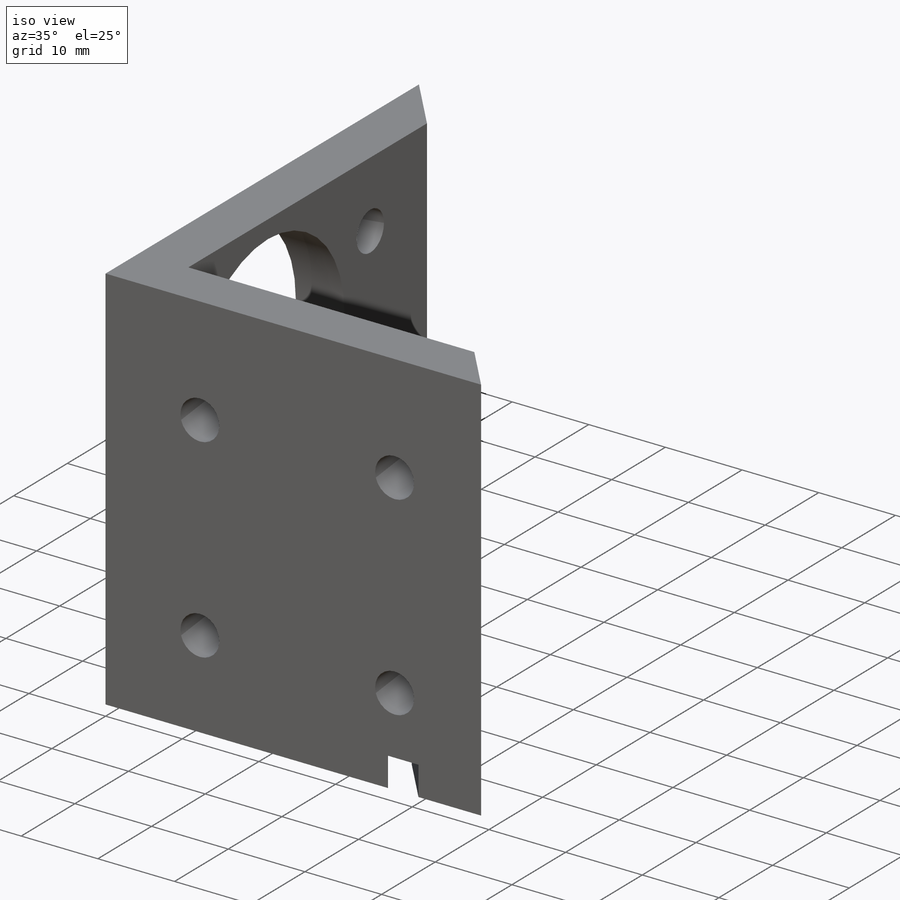
[diagram: iso view]
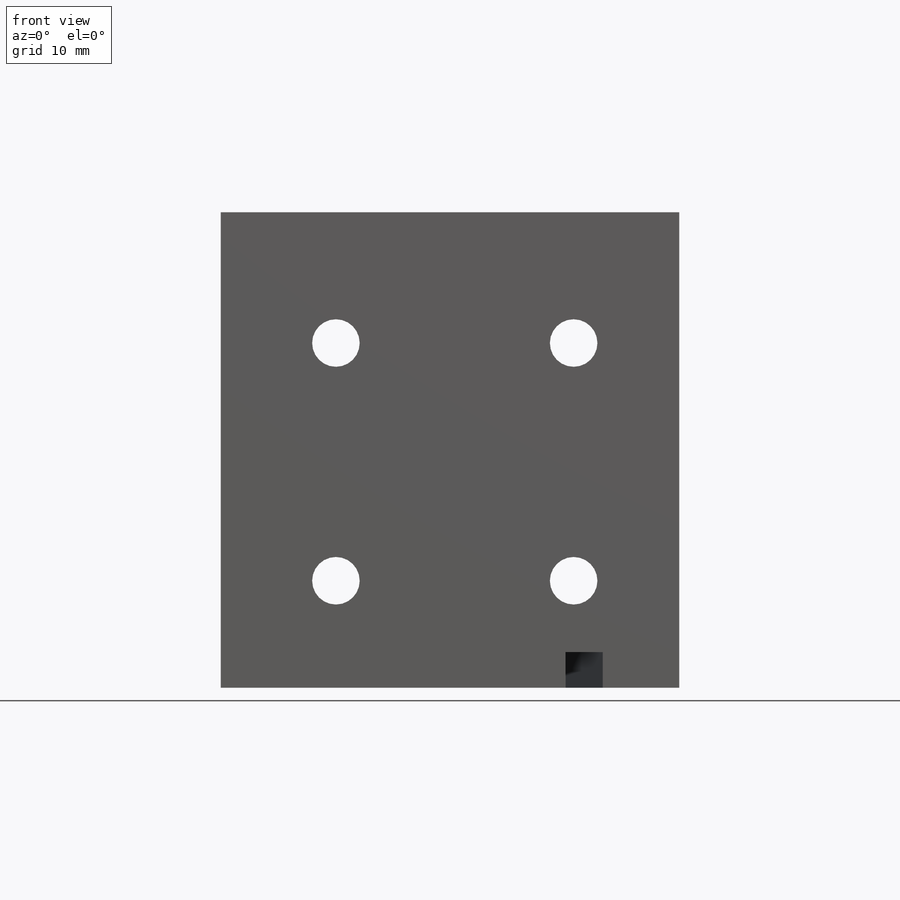
[diagram: front view]
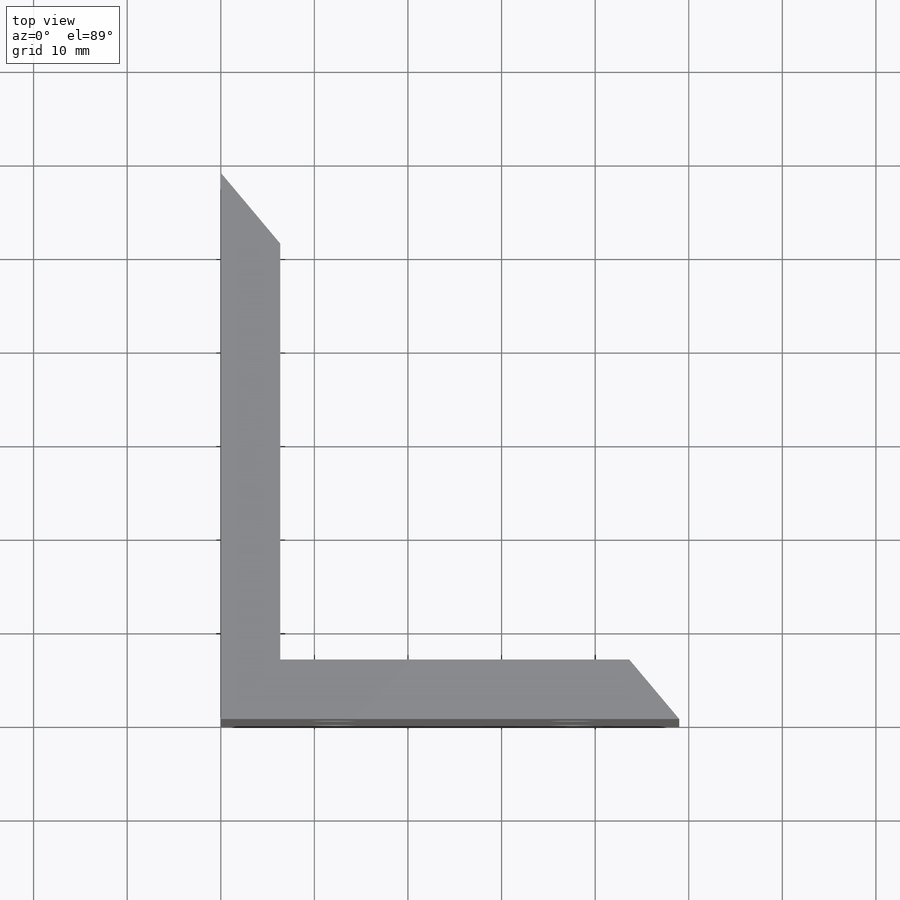
[diagram: top view]
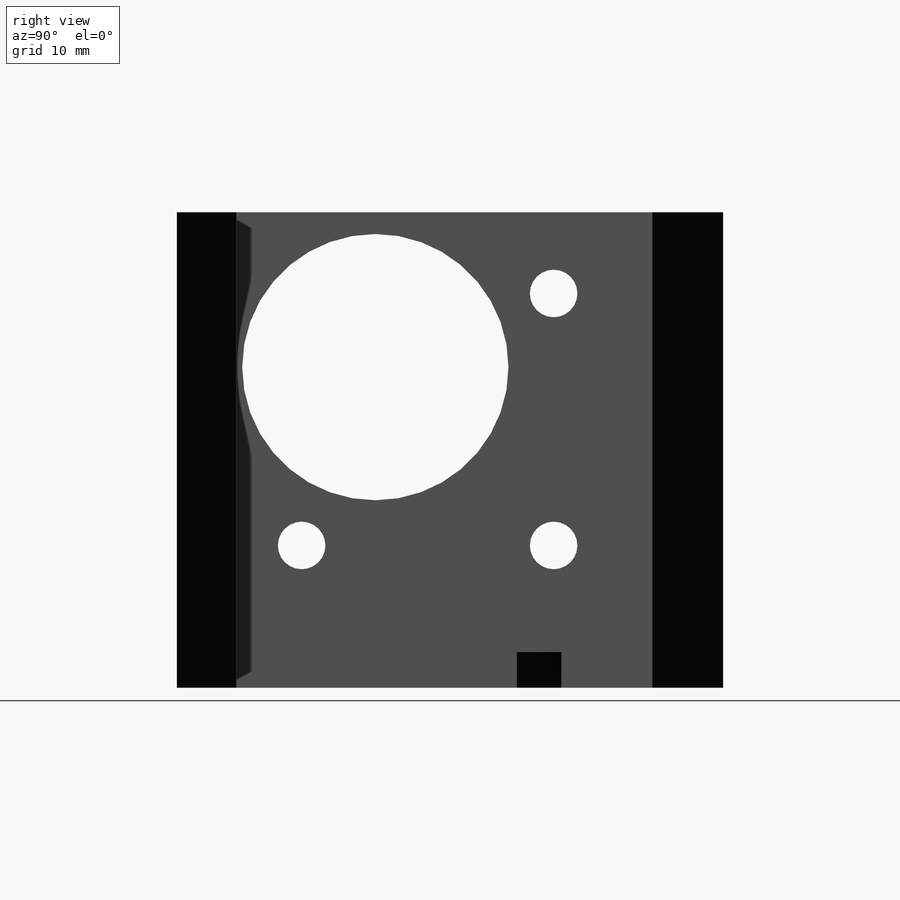
[diagram: right view]
SOLIDWORKS PART (.sldprt)
format: sldprt  version: not decoded by parser v0  size: 225,280 bytes
history: native  units: mm
features: sketch x4, cut_extrude x3, material x1, extrude x1 (+11 scaffold rows collapsed)
feature tree (20):
  scaffold x11  (default folders/planes/origin — collapsed)
  material  "Material <not specified>"
  sketch  "Sketch2"  dims[D1=40.0deg D2=6.35mm D3=6.35mm D4=76.2mm]
  extrude  "Boss-Extrude1"  Depth=50.8mm
  sketch  "Sketch4"  dims[D1=5.08mm D2=25.4mm D3=24.13mm]
  cut_extrude  "Cut-Extrude2"  [1 undecoded]
  sketch  "Sketch3"  dims[c1.D1=25.4mm c1.D2=28.448mm c2.D1=5.08mm c2.D7=5.08mm c3.D1=5.08mm c3.D3=17.78mm c3.D4=31.75mm c3.D5=~22.58248mm c4.D4=19.05mm c4.D3=~20.893385mm c5.D3=120.0deg c5.D4=~19.787346mm c6.D4=120.0deg c6.D3=~25.248174mm c7.D4=5.08mm c7.D5=16.51mm c7.D6=~21.198239mm c7.D3=22.8219mm c8.D6=21.209mm c8.D1=5.08mm c8.D4=15.24mm c8.D5=16.51mm c9.D4=6.35mm c9.D5=19.05mm c9.D7=19.05mm]
  cut_extrude  "Cut-Extrude1"  [1 undecoded]
  sketch  "Sketch5"  dims[D1=3.048mm D2=63.5mm]
  cut_extrude  "Cut-Extrude3"  Depth=3.81mm
decode coverage: 6 of 8 modeling features carry decoded parameters
note: ~ marks probable driven/reference dimensions
note: 2 parameter values undecoded
note: suppression state not decoded; provenance and decode notes live in map.json
